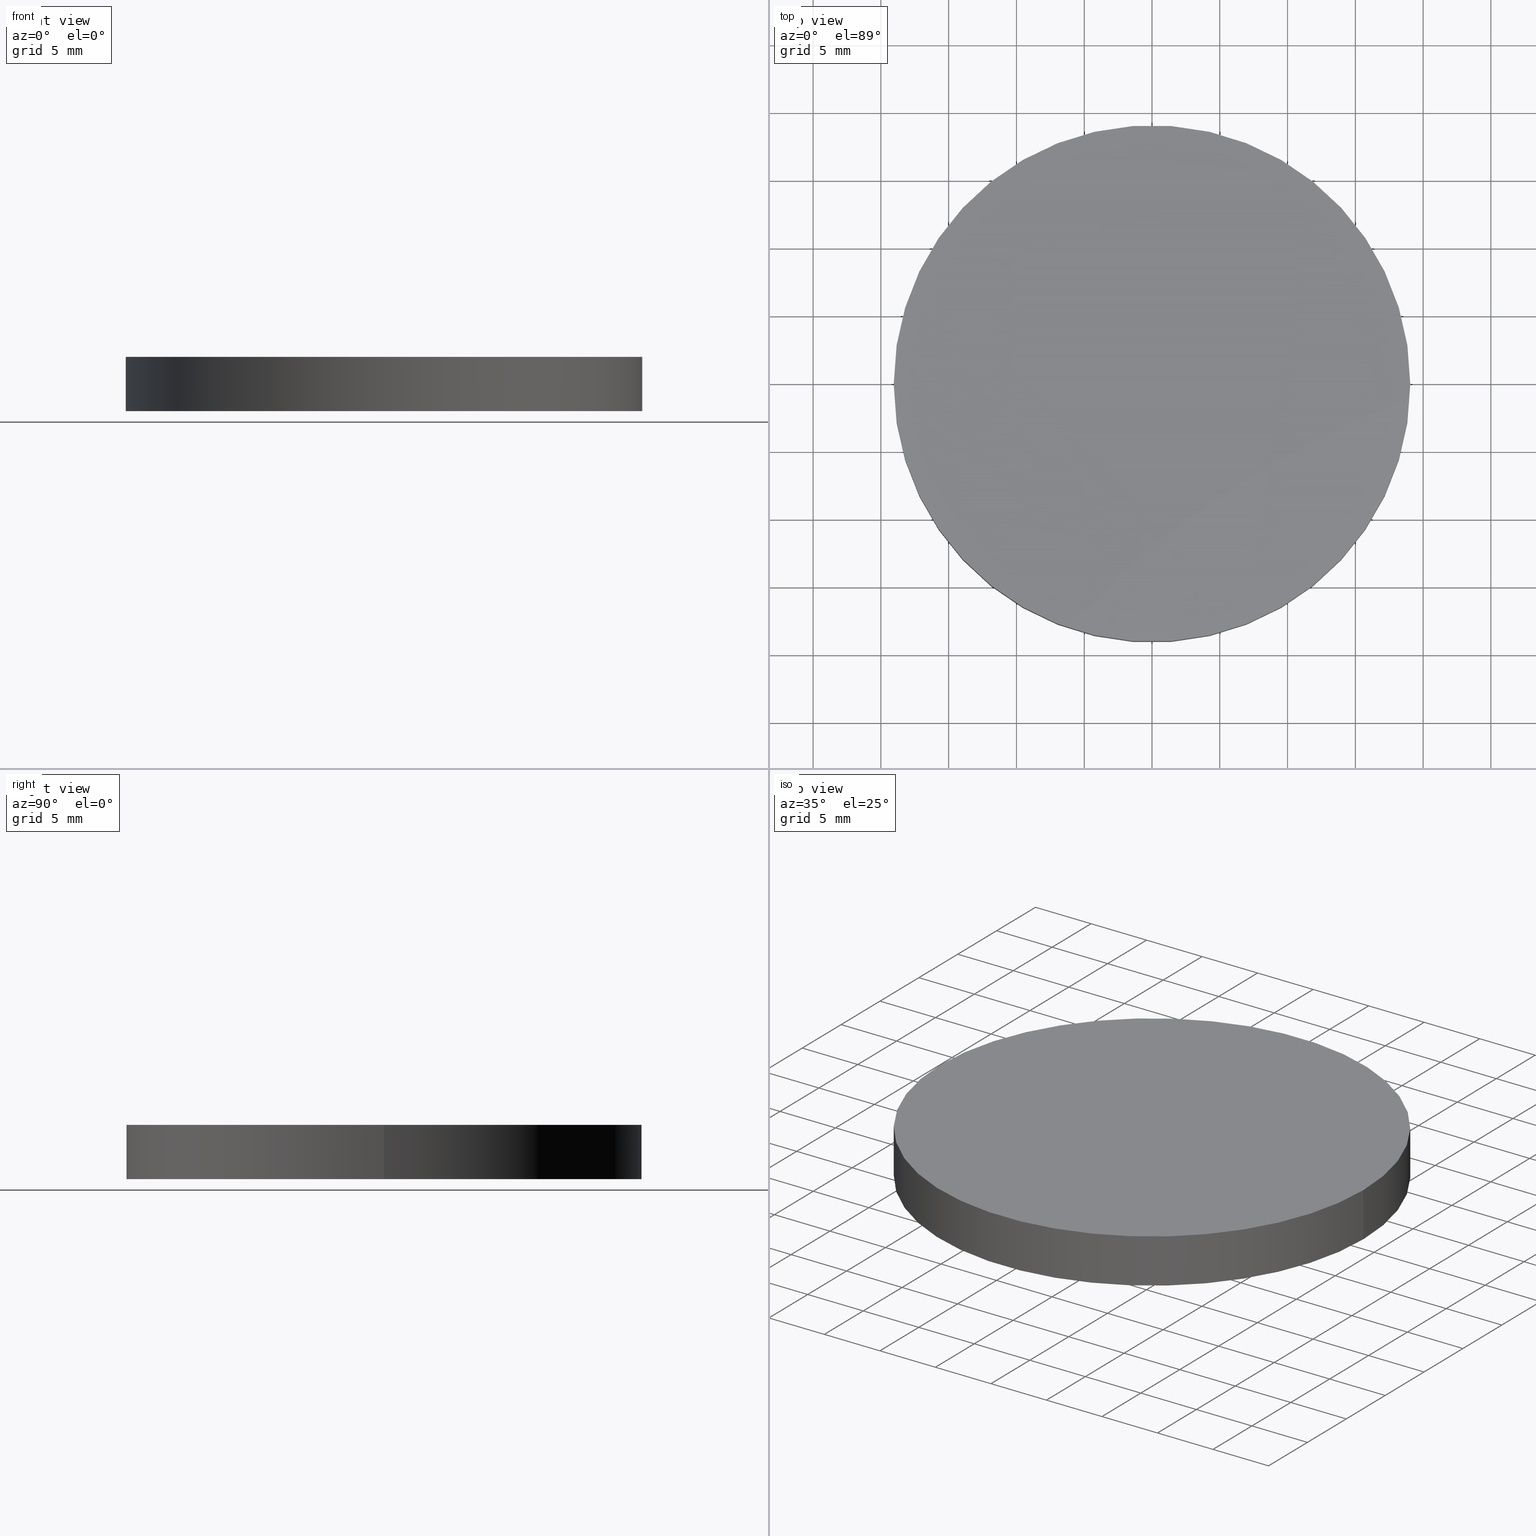
[diagram: canonical four-view strip — front | top / right | iso, engineering-drawing reading convention]
A machine part, canonical four-view strip (front | top / right | iso — engineering-drawing reading convention). The complete STEP part file that produces these views, byte-faithful:
ISO-10303-21;
HEADER;
FILE_DESCRIPTION (( 'STEP AP214' ),
    '1' );
FILE_NAME ('180008.STEP',
    '2019-07-09T05:49:59',
    ( 'user' ),
    ( '΢���й�' ),
    'SwSTEP 2.0',
    'SolidWorks 2016',
    '' );
FILE_SCHEMA (( 'AUTOMOTIVE_DESIGN' ));
ENDSEC;

DATA;
#1 = PRESENTATION_STYLE_ASSIGNMENT (( #123 ) ) ;
#2 = EDGE_LOOP ( 'NONE', ( #36, #16 ) ) ;
#3 = AXIS2_PLACEMENT_3D ( 'NONE', #133, #75, #103 ) ;
#4 = ADVANCED_BREP_SHAPE_REPRESENTATION ( '180008', ( #101, #79 ), #49 ) ;
#5 = PRODUCT_DEFINITION_CONTEXT ( 'detailed design', #86, 'design' ) ;
#6 = FACE_OUTER_BOUND ( 'NONE', #2, .T. ) ;
#7 = CARTESIAN_POINT ( 'NONE',  ( 0.0000000000000000000, 0.0000000000000000000, 4.000000000000000000 ) ) ;
#8 = CARTESIAN_POINT ( 'NONE',  ( -19.05000000000000100, 0.0000000000000000000, 0.0000000000000000000 ) ) ;
#9 = VERTEX_POINT ( 'NONE', #127 ) ;
#10 = EDGE_LOOP ( 'NONE', ( #31, #111 ) ) ;
#11 = CLOSED_SHELL ( 'NONE', ( #35, #69, #117, #25 ) ) ;
#12 = PRESENTATION_LAYER_ASSIGNMENT (  '', '', ( #23 ) ) ;
#13 =( LENGTH_UNIT ( ) NAMED_UNIT ( * ) SI_UNIT ( .MILLI., .METRE. ) );
#14 = DIRECTION ( 'NONE',  ( 1.000000000000000000, 0.0000000000000000000, 0.0000000000000000000 ) ) ;
#15 = DIRECTION ( 'NONE',  ( 1.000000000000000000, 0.0000000000000000000, -0.0000000000000000000 ) ) ;
#16 = ORIENTED_EDGE ( 'NONE', *, *, #34, .F. ) ;
#17 = FILL_AREA_STYLE_COLOUR ( '', #130 ) ;
#18 = SURFACE_STYLE_FILL_AREA ( #76 ) ;
#19 = DIRECTION ( 'NONE',  ( 1.000000000000000000, 0.0000000000000000000, -0.0000000000000000000 ) ) ;
#20 =( NAMED_UNIT ( * ) PLANE_ANGLE_UNIT ( ) SI_UNIT ( $, .RADIAN. ) );
#21 = DIRECTION ( 'NONE',  ( -1.000000000000000000, 0.0000000000000000000, 0.0000000000000000000 ) ) ;
#22 = AXIS2_PLACEMENT_3D ( 'NONE', #125, #109, #102 ) ;
#23 = STYLED_ITEM ( 'NONE', ( #43 ), #101 ) ;
#24 = CYLINDRICAL_SURFACE ( 'NONE', #41, 19.05000000000000100 ) ;
#25 = ADVANCED_FACE ( 'NONE', ( #6 ), #83, .F. ) ;
#26 = CIRCLE ( 'NONE', #118, 19.05000000000000100 ) ;
#27 = SURFACE_STYLE_FILL_AREA ( #99 ) ;
#28 =( NAMED_UNIT ( * ) SI_UNIT ( $, .STERADIAN. ) SOLID_ANGLE_UNIT ( ) );
#29 = DIRECTION ( 'NONE',  ( -0.0000000000000000000, -0.0000000000000000000, -1.000000000000000000 ) ) ;
#30 = PRODUCT_CONTEXT ( 'NONE', #126, 'mechanical' ) ;
#31 = ORIENTED_EDGE ( 'NONE', *, *, #48, .T. ) ;
#32 = CARTESIAN_POINT ( 'NONE',  ( 19.05000000000000100, 2.332952152375708000E-015, 4.000000000000000000 ) ) ;
#33 = APPLICATION_PROTOCOL_DEFINITION ( 'draft international standard', 'automotive_design', 1998, #126 ) ;
#34 = EDGE_CURVE ( 'NONE', #85, #44, #138, .T. ) ;
#35 = ADVANCED_FACE ( 'NONE', ( #53 ), #24, .T. ) ;
#36 = ORIENTED_EDGE ( 'NONE', *, *, #42, .F. ) ;
#37 = DIRECTION ( 'NONE',  ( 0.0000000000000000000, 0.0000000000000000000, 1.000000000000000000 ) ) ;
#38 = DIRECTION ( 'NONE',  ( -0.0000000000000000000, -0.0000000000000000000, -1.000000000000000000 ) ) ;
#39 = ORIENTED_EDGE ( 'NONE', *, *, #119, .F. ) ;
#40 = DIRECTION ( 'NONE',  ( 0.0000000000000000000, 0.0000000000000000000, 1.000000000000000000 ) ) ;
#41 = AXIS2_PLACEMENT_3D ( 'NONE', #7, #29, #21 ) ;
#42 = EDGE_CURVE ( 'NONE', #44, #85, #72, .T. ) ;
#43 = PRESENTATION_STYLE_ASSIGNMENT (( #66 ) ) ;
#44 = VERTEX_POINT ( 'NONE', #8 ) ;
#45 = CYLINDRICAL_SURFACE ( 'NONE', #3, 19.05000000000000100 ) ;
#46 = MECHANICAL_DESIGN_GEOMETRIC_PRESENTATION_REPRESENTATION (  '', ( #23 ), #96 ) ;
#47 = AXIS2_PLACEMENT_3D ( 'NONE', #88, #87, #14 ) ;
#48 = EDGE_CURVE ( 'NONE', #9, #64, #26, .T. ) ;
#49 =( GEOMETRIC_REPRESENTATION_CONTEXT ( 3 ) GLOBAL_UNCERTAINTY_ASSIGNED_CONTEXT ( ( #63 ) ) GLOBAL_UNIT_ASSIGNED_CONTEXT ( ( #108, #20, #28 ) ) REPRESENTATION_CONTEXT ( 'NONE', 'WORKASPACE' ) );
#50 = CARTESIAN_POINT ( 'NONE',  ( 0.0000000000000000000, 0.0000000000000000000, 0.0000000000000000000 ) ) ;
#51 = FACE_OUTER_BOUND ( 'NONE', #80, .T. ) ;
#52 = DIRECTION ( 'NONE',  ( -0.0000000000000000000, -0.0000000000000000000, -1.000000000000000000 ) ) ;
#53 = FACE_OUTER_BOUND ( 'NONE', #91, .T. ) ;
#54 = COLOUR_RGB ( '',1.000000000000000000, 1.000000000000000000, 1.000000000000000000 ) ;
#55 = PRODUCT_DEFINITION_SHAPE ( 'NONE', 'NONE',  #84 ) ;
#56 = ORIENTED_EDGE ( 'NONE', *, *, #70, .T. ) ;
#57 = DIRECTION ( 'NONE',  ( 1.000000000000000000, 0.0000000000000000000, 0.0000000000000000000 ) ) ;
#58 = ORIENTED_EDGE ( 'NONE', *, *, #93, .F. ) ;
#59 = PRODUCT ( '180008', '180008', '', ( #30 ) ) ;
#60 = CARTESIAN_POINT ( 'NONE',  ( 0.0000000000000000000, 0.0000000000000000000, 0.0000000000000000000 ) ) ;
#61 = ORIENTED_EDGE ( 'NONE', *, *, #70, .F. ) ;
#62 = APPLICATION_PROTOCOL_DEFINITION ( 'draft international standard', 'automotive_design', 1998, #86 ) ;
#63 = UNCERTAINTY_MEASURE_WITH_UNIT (LENGTH_MEASURE( 1.000000000000000100E-005 ), #108, 'distance_accuracy_value', 'NONE');
#64 = VERTEX_POINT ( 'NONE', #32 ) ;
#65 = AXIS2_PLACEMENT_3D ( 'NONE', #78, #73, #19 ) ;
#66 = SURFACE_STYLE_USAGE ( .BOTH. , #68 ) ;
#67 = FACE_OUTER_BOUND ( 'NONE', #10, .T. ) ;
#68 = SURFACE_SIDE_STYLE ('',( #18 ) ) ;
#69 = ADVANCED_FACE ( 'NONE', ( #51 ), #45, .T. ) ;
#70 = EDGE_CURVE ( 'NONE', #64, #85, #105, .T. ) ;
#71 = UNCERTAINTY_MEASURE_WITH_UNIT (LENGTH_MEASURE( 1.000000000000000100E-005 ), #136, 'distance_accuracy_value', 'NONE');
#72 = CIRCLE ( 'NONE', #47, 19.05000000000000100 ) ;
#73 = DIRECTION ( 'NONE',  ( 0.0000000000000000000, 0.0000000000000000000, 1.000000000000000000 ) ) ;
#74 = DIRECTION ( 'NONE',  ( 1.000000000000000000, 0.0000000000000000000, 0.0000000000000000000 ) ) ;
#75 = DIRECTION ( 'NONE',  ( -0.0000000000000000000, -0.0000000000000000000, -1.000000000000000000 ) ) ;
#76 = FILL_AREA_STYLE ('',( #17 ) ) ;
#77 = ORIENTED_EDGE ( 'NONE', *, *, #42, .T. ) ;
#78 = CARTESIAN_POINT ( 'NONE',  ( 0.0000000000000000000, 0.0000000000000000000, 4.000000000000000000 ) ) ;
#79 = AXIS2_PLACEMENT_3D ( 'NONE', #60, #114, #74 ) ;
#80 = EDGE_LOOP ( 'NONE', ( #61, #120, #107, #77 ) ) ;
#81 =( NAMED_UNIT ( * ) PLANE_ANGLE_UNIT ( ) SI_UNIT ( $, .RADIAN. ) );
#82 = CIRCLE ( 'NONE', #22, 19.05000000000000100 ) ;
#83 = PLANE ( 'NONE',  #92 ) ;
#84 = PRODUCT_DEFINITION ( 'δ֪', '', #90, #5 ) ;
#85 = VERTEX_POINT ( 'NONE', #122 ) ;
#86 = APPLICATION_CONTEXT ( 'automotive_design' ) ;
#87 = DIRECTION ( 'NONE',  ( 0.0000000000000000000, 0.0000000000000000000, 1.000000000000000000 ) ) ;
#88 = CARTESIAN_POINT ( 'NONE',  ( 0.0000000000000000000, 0.0000000000000000000, 0.0000000000000000000 ) ) ;
#89 = MECHANICAL_DESIGN_GEOMETRIC_PRESENTATION_REPRESENTATION (  '', ( #98 ), #116 ) ;
#90 = PRODUCT_DEFINITION_FORMATION_WITH_SPECIFIED_SOURCE ( '�κ�', '', #59, .NOT_KNOWN. ) ;
#91 = EDGE_LOOP ( 'NONE', ( #39, #56, #115, #58 ) ) ;
#92 = AXIS2_PLACEMENT_3D ( 'NONE', #50, #40, #15 ) ;
#93 = EDGE_CURVE ( 'NONE', #9, #44, #128, .T. ) ;
#94 = PLANE ( 'NONE',  #65 ) ;
#95 = VECTOR ( 'NONE', #52, 1000.000000000000000 ) ;
#96 =( GEOMETRIC_REPRESENTATION_CONTEXT ( 3 ) GLOBAL_UNCERTAINTY_ASSIGNED_CONTEXT ( ( #124 ) ) GLOBAL_UNIT_ASSIGNED_CONTEXT ( ( #13, #140, #113 ) ) REPRESENTATION_CONTEXT ( 'NONE', 'WORKASPACE' ) );
#97 = FILL_AREA_STYLE_COLOUR ( '', #54 ) ;
#98 = STYLED_ITEM ( 'NONE', ( #1 ), #4 ) ;
#99 = FILL_AREA_STYLE ('',( #97 ) ) ;
#100 = VECTOR ( 'NONE', #38, 1000.000000000000000 ) ;
#101 = MANIFOLD_SOLID_BREP ( '͹̨-����1', #11 ) ;
#102 = DIRECTION ( 'NONE',  ( 1.000000000000000000, 0.0000000000000000000, 0.0000000000000000000 ) ) ;
#103 = DIRECTION ( 'NONE',  ( -1.000000000000000000, 0.0000000000000000000, 0.0000000000000000000 ) ) ;
#104 = PRODUCT_RELATED_PRODUCT_CATEGORY ( 'part', '', ( #59 ) ) ;
#105 = LINE ( 'NONE', #135, #100 ) ;
#106 = SHAPE_DEFINITION_REPRESENTATION ( #55, #4 ) ;
#107 = ORIENTED_EDGE ( 'NONE', *, *, #93, .T. ) ;
#108 =( LENGTH_UNIT ( ) NAMED_UNIT ( * ) SI_UNIT ( .MILLI., .METRE. ) );
#109 = DIRECTION ( 'NONE',  ( 0.0000000000000000000, 0.0000000000000000000, 1.000000000000000000 ) ) ;
#110 = AXIS2_PLACEMENT_3D ( 'NONE', #134, #139, #131 ) ;
#111 = ORIENTED_EDGE ( 'NONE', *, *, #119, .T. ) ;
#112 =( NAMED_UNIT ( * ) SI_UNIT ( $, .STERADIAN. ) SOLID_ANGLE_UNIT ( ) );
#113 =( NAMED_UNIT ( * ) SI_UNIT ( $, .STERADIAN. ) SOLID_ANGLE_UNIT ( ) );
#114 = DIRECTION ( 'NONE',  ( 0.0000000000000000000, 0.0000000000000000000, 1.000000000000000000 ) ) ;
#115 = ORIENTED_EDGE ( 'NONE', *, *, #34, .T. ) ;
#116 =( GEOMETRIC_REPRESENTATION_CONTEXT ( 3 ) GLOBAL_UNCERTAINTY_ASSIGNED_CONTEXT ( ( #71 ) ) GLOBAL_UNIT_ASSIGNED_CONTEXT ( ( #136, #81, #112 ) ) REPRESENTATION_CONTEXT ( 'NONE', 'WORKASPACE' ) );
#117 = ADVANCED_FACE ( 'NONE', ( #67 ), #94, .T. ) ;
#118 = AXIS2_PLACEMENT_3D ( 'NONE', #121, #37, #57 ) ;
#119 = EDGE_CURVE ( 'NONE', #64, #9, #82, .T. ) ;
#120 = ORIENTED_EDGE ( 'NONE', *, *, #48, .F. ) ;
#121 = CARTESIAN_POINT ( 'NONE',  ( 0.0000000000000000000, 0.0000000000000000000, 4.000000000000000000 ) ) ;
#122 = CARTESIAN_POINT ( 'NONE',  ( 19.05000000000000100, 2.332952152375708000E-015, 0.0000000000000000000 ) ) ;
#123 = SURFACE_STYLE_USAGE ( .BOTH. , #137 ) ;
#124 = UNCERTAINTY_MEASURE_WITH_UNIT (LENGTH_MEASURE( 1.000000000000000100E-005 ), #13, 'distance_accuracy_value', 'NONE');
#125 = CARTESIAN_POINT ( 'NONE',  ( 0.0000000000000000000, 0.0000000000000000000, 4.000000000000000000 ) ) ;
#126 = APPLICATION_CONTEXT ( 'automotive_design' ) ;
#127 = CARTESIAN_POINT ( 'NONE',  ( -19.05000000000000100, 0.0000000000000000000, 4.000000000000000000 ) ) ;
#128 = LINE ( 'NONE', #132, #95 ) ;
#129 = PRESENTATION_LAYER_ASSIGNMENT (  '', '', ( #98 ) ) ;
#130 = COLOUR_RGB ( '',1.000000000000000000, 1.000000000000000000, 1.000000000000000000 ) ;
#131 = DIRECTION ( 'NONE',  ( 1.000000000000000000, 0.0000000000000000000, 0.0000000000000000000 ) ) ;
#132 = CARTESIAN_POINT ( 'NONE',  ( -19.05000000000000100, 0.0000000000000000000, 4.000000000000000000 ) ) ;
#133 = CARTESIAN_POINT ( 'NONE',  ( 0.0000000000000000000, 0.0000000000000000000, 4.000000000000000000 ) ) ;
#134 = CARTESIAN_POINT ( 'NONE',  ( 0.0000000000000000000, 0.0000000000000000000, 0.0000000000000000000 ) ) ;
#135 = CARTESIAN_POINT ( 'NONE',  ( 19.05000000000000100, 2.332952152375708000E-015, 4.000000000000000000 ) ) ;
#136 =( LENGTH_UNIT ( ) NAMED_UNIT ( * ) SI_UNIT ( .MILLI., .METRE. ) );
#137 = SURFACE_SIDE_STYLE ('',( #27 ) ) ;
#138 = CIRCLE ( 'NONE', #110, 19.05000000000000100 ) ;
#139 = DIRECTION ( 'NONE',  ( 0.0000000000000000000, 0.0000000000000000000, 1.000000000000000000 ) ) ;
#140 =( NAMED_UNIT ( * ) PLANE_ANGLE_UNIT ( ) SI_UNIT ( $, .RADIAN. ) );
ENDSEC;
END-ISO-10303-21;
